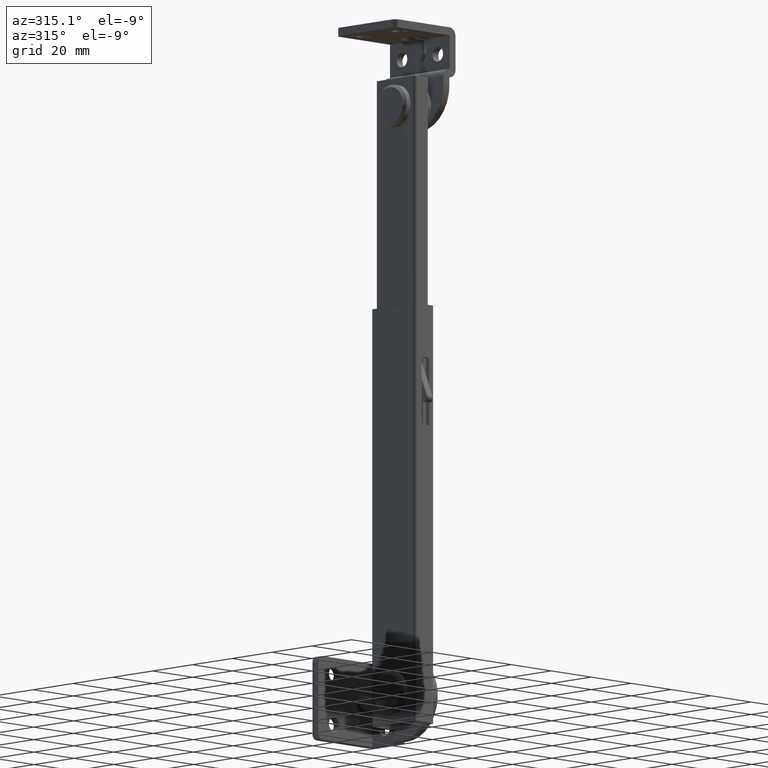
[diagram: clean part render]
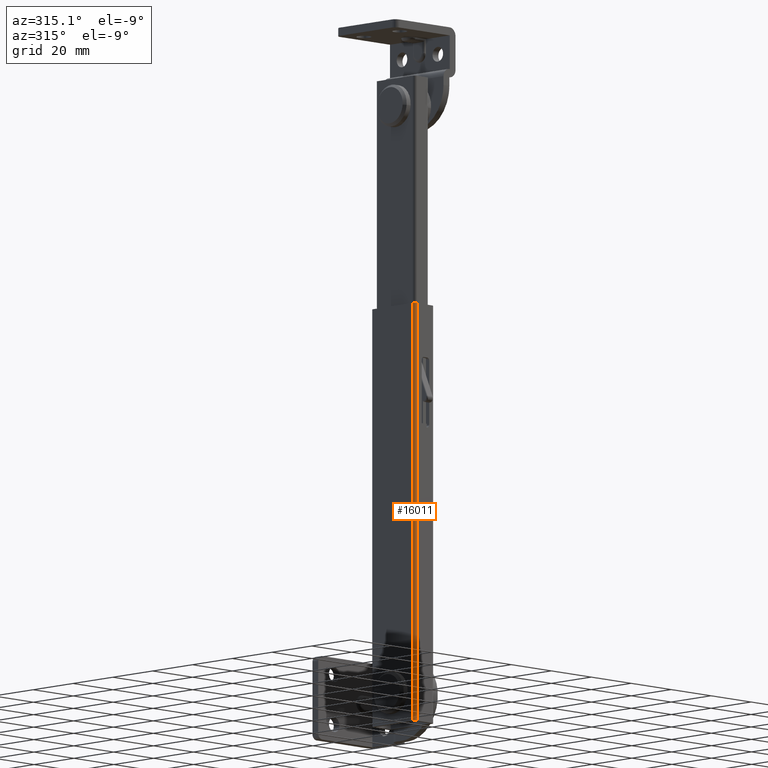
[diagram: same view with one face highlighted and labeled with its STEP entity id]
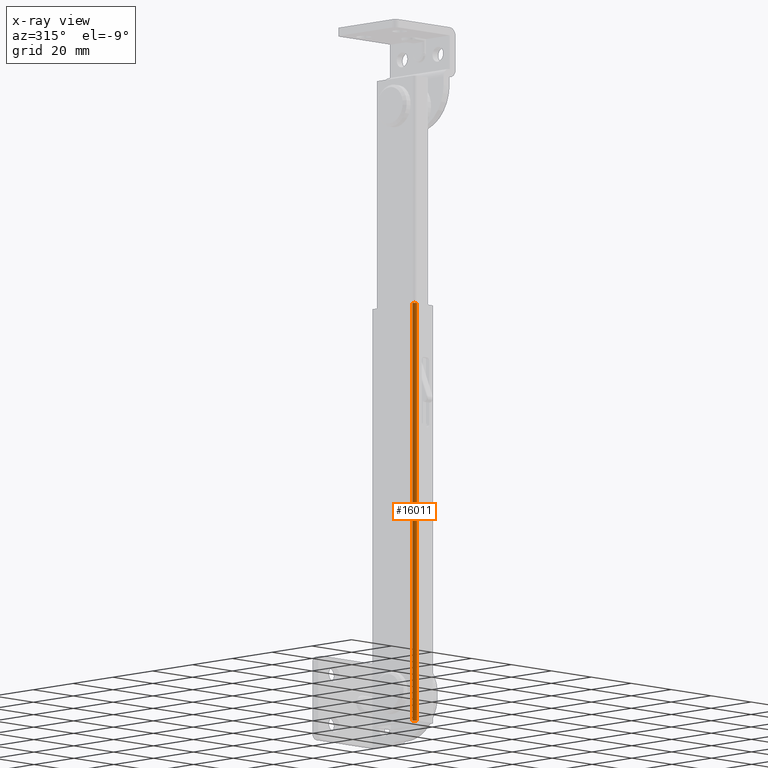
[diagram: x-ray of the same camera — body ghosted, the highlighted face saturated]
A machine part, auxiliary view. The second image highlights one B-rep face of the part: STEP entity #16011.
The next image is the same camera in x-ray: the body ghosted, the highlighted face saturated — about 0% of this face is hidden behind the body in this view.
In plain terms, the highlighted face is a freeform B-spline surface patch.
Its self-contained STEP definition (entity closure, byte-faithful):
#15736=CARTESIAN_POINT('',(1.197313720102792,-11.0,139.0));
#15737=VERTEX_POINT('',#15736);
#15804=CARTESIAN_POINT('',(0.0,-9.800003000000000,139.0));
#15805=VERTEX_POINT('',#15804);
#15811=CARTESIAN_POINT('',(0.0,-9.800003000000000,139.0));
#15812=CARTESIAN_POINT('',(-0.000001500000000,-10.997322713402079,139.0));
#15813=CARTESIAN_POINT('',(1.197313720102792,-11.0,139.0));
#15821=(BOUNDED_CURVE()B_SPLINE_CURVE(2,(#15811,#15812,#15813),.UNSPECIFIED.,.F.,.U.)CURVE()GEOMETRIC_REPRESENTATION_ITEM()QUASI_UNIFORM_CURVE()RATIONAL_B_SPLINE_CURVE((1.0,0.707896908660084,1.0))REPRESENTATION_ITEM(''));
#15822=EDGE_CURVE('',#15805,#15737,#15821,.T.);
#15862=CARTESIAN_POINT('',(1.197313720102792,-11.0,-11.0));
#15863=VERTEX_POINT('',#15862);
#15871=CARTESIAN_POINT('',(0.0,-9.800003000000000,-11.0));
#15872=VERTEX_POINT('',#15871);
#15873=CARTESIAN_POINT('',(0.0,-9.800003000000000,-11.0));
#15874=CARTESIAN_POINT('',(-0.000001500000000,-10.997322713402079,-11.0));
#15875=CARTESIAN_POINT('',(1.197313720102792,-11.0,-11.0));
#15883=(BOUNDED_CURVE()B_SPLINE_CURVE(2,(#15873,#15874,#15875),.UNSPECIFIED.,.F.,.U.)CURVE()GEOMETRIC_REPRESENTATION_ITEM()QUASI_UNIFORM_CURVE()RATIONAL_B_SPLINE_CURVE((1.0,0.707896908660084,1.0))REPRESENTATION_ITEM(''));
#15884=EDGE_CURVE('',#15872,#15863,#15883,.T.);
#15983=CARTESIAN_POINT('',(1.231409337969448,-10.999591789970671,-14.750000000000011));
#15984=CARTESIAN_POINT('',(1.231409337969448,-10.999591789970671,142.843750000000000));
#15985=CARTESIAN_POINT('',(-0.089837712123183,-11.034189861597918,-14.750000000000007));
#15986=CARTESIAN_POINT('',(-0.089837712123183,-11.034189861597918,142.843750000000030));
#15987=CARTESIAN_POINT('',(0.002958284754034,-9.715751506231094,-14.750000000000009));
#15988=CARTESIAN_POINT('',(0.002958284754034,-9.715751506231094,142.843750000000000));
#15996=(BOUNDED_SURFACE()B_SPLINE_SURFACE(1,2,((#15983,#15985,#15987),(#15984,#15986,#15988)),.UNSPECIFIED.,.F.,.F.,.U.)B_SPLINE_SURFACE_WITH_KNOTS((2,2),(3,3),(0.0,157.593750000000000),(0.0,2.125211771848801),.UNSPECIFIED.)GEOMETRIC_REPRESENTATION_ITEM()RATIONAL_B_SPLINE_SURFACE(((1.0,0.670968792874488,0.996344051521336),(1.0,0.670968792874488,0.996344051521336)))REPRESENTATION_ITEM('')SURFACE());
#15997=ORIENTED_EDGE('',*,*,#15822,.F.);
#15998=CARTESIAN_POINT('',(0.0,-9.800003000000000,-11.0));
#15999=CARTESIAN_POINT('',(0.0,-9.800003000000000,139.0));
#16000=QUASI_UNIFORM_CURVE('',1,(#15998,#15999),.UNSPECIFIED.,.F.,.U.);
#16001=EDGE_CURVE('',#15872,#15805,#16000,.T.);
#16002=ORIENTED_EDGE('',*,*,#16001,.F.);
#16003=ORIENTED_EDGE('',*,*,#15884,.T.);
#16004=CARTESIAN_POINT('',(1.197313720102792,-11.0,-11.0));
#16005=CARTESIAN_POINT('',(1.197313720102792,-11.0,139.0));
#16006=QUASI_UNIFORM_CURVE('',1,(#16004,#16005),.UNSPECIFIED.,.F.,.U.);
#16007=EDGE_CURVE('',#15863,#15737,#16006,.T.);
#16008=ORIENTED_EDGE('',*,*,#16007,.T.);
#16009=EDGE_LOOP('',(#15997,#16002,#16003,#16008));
#16010=FACE_OUTER_BOUND('',#16009,.T.);
#16011=ADVANCED_FACE('',(#16010),#15996,.T.);